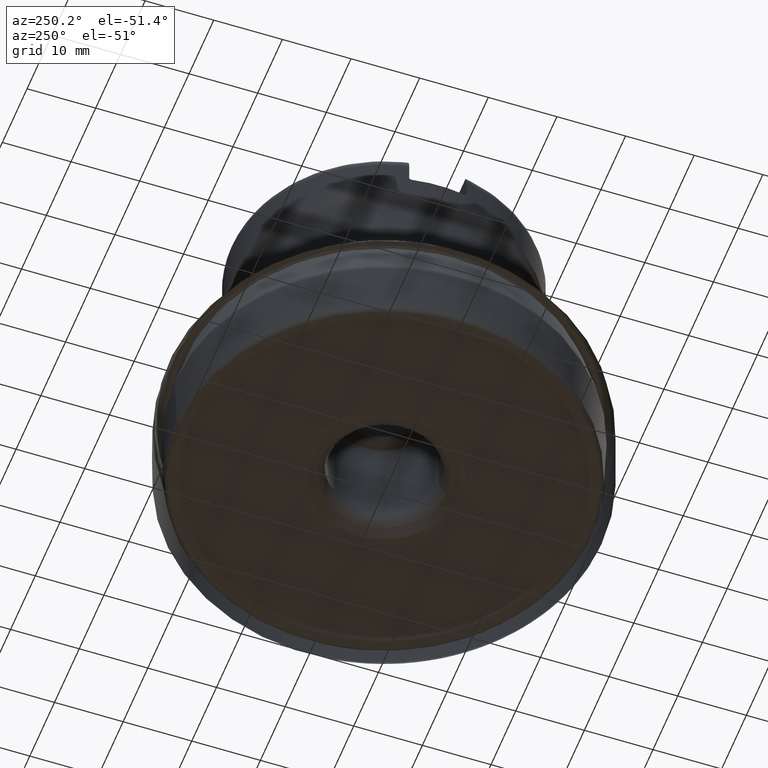
[diagram: clean part render]
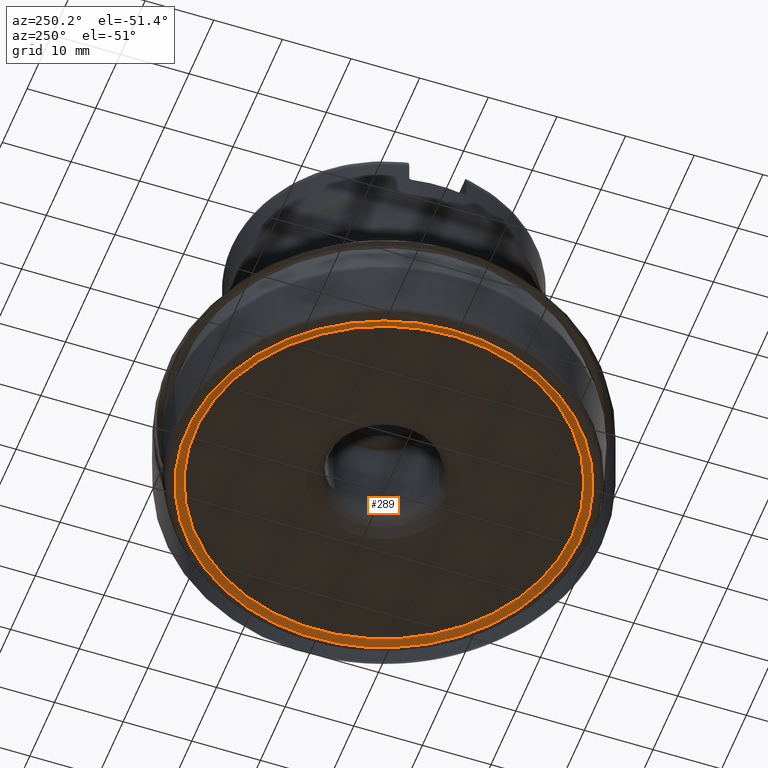
[diagram: same view with one face highlighted and labeled with its STEP entity id]
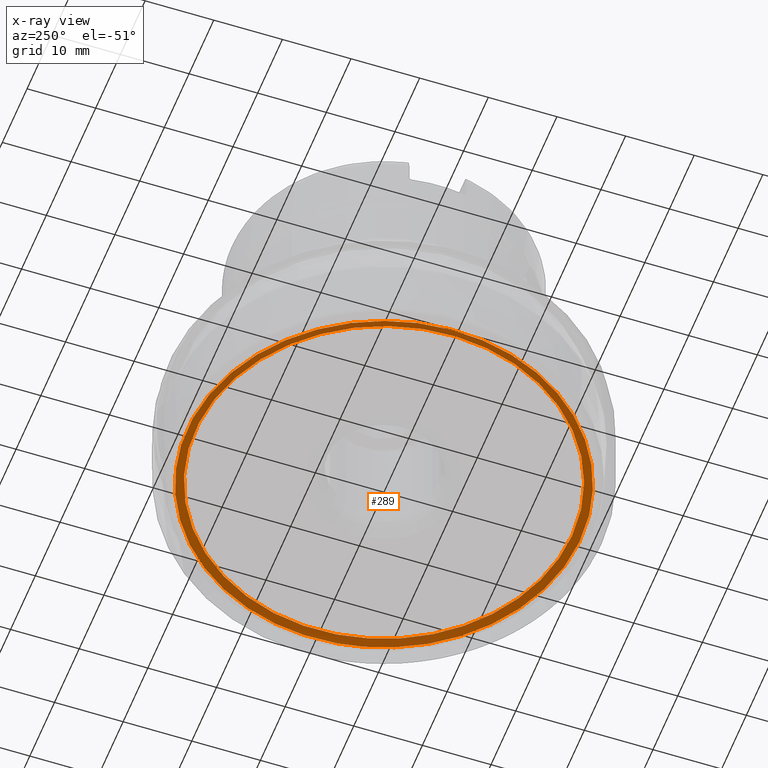
[diagram: x-ray of the same camera — body ghosted, the highlighted face saturated]
A machine part, auxiliary view. The second image highlights one B-rep face of the part: STEP entity #289.
The next image is the same camera in x-ray: the body ghosted, the highlighted face saturated — about 0% of this face is hidden behind the body in this view.
In plain terms, the highlighted face is a SurfaceOfRevolution surface.
Its self-contained STEP definition (entity closure, byte-faithful):
#122=SURFACE_OF_REVOLUTION('',#1150,#143);
#143=AXIS1_PLACEMENT('',#2445,#1529);
#154=(
BOUNDED_CURVE()
B_SPLINE_CURVE(3,(#2424,#2425,#2426,#2427,#2428,#2429,#2430),
 .UNSPECIFIED.,.T.,.F.)
B_SPLINE_CURVE_WITH_KNOTS((1,3,3,3,1),(-0.5,0.,0.5,1.,1.5),
 .UNSPECIFIED.)
CURVE()
GEOMETRIC_REPRESENTATION_ITEM()
RATIONAL_B_SPLINE_CURVE((1.,0.333333333333333,0.333333333333333,1.,0.333333333333333,
0.333333333333333,1.))
REPRESENTATION_ITEM('')
);
#289=ADVANCED_FACE('',(#454,#455),#122,.F.);
#454=FACE_BOUND('',#578,.T.);
#455=FACE_BOUND('',#579,.T.);
#578=EDGE_LOOP('',(#810));
#579=EDGE_LOOP('',(#811));
#810=ORIENTED_EDGE('',*,*,#1027,.T.);
#811=ORIENTED_EDGE('',*,*,#1028,.F.);
#911=VERTEX_POINT('',#2431);
#912=VERTEX_POINT('',#2439);
#1027=EDGE_CURVE('',#911,#911,#154,.T.);
#1028=EDGE_CURVE('',#912,#912,#1087,.T.);
#1087=CIRCLE('',#1263,27.4345930923973);
#1150=B_SPLINE_CURVE_WITH_KNOTS('',3,(#2440,#2441,#2442,#2443,#2444),
 .UNSPECIFIED.,.F.,.F.,(4,1,4),(0.,0.5,1.),.UNSPECIFIED.);
#1263=AXIS2_PLACEMENT_3D('',#2438,#1527,#1528);
#1527=DIRECTION('',(0.,1.17145536458252E-15,1.));
#1528=DIRECTION('',(0.,-1.,1.16977803160727E-15));
#1529=DIRECTION('',(0.,1.17145536458252E-15,1.));
#2424=CARTESIAN_POINT('',(28.4523291816837,-3.3827147311929,0.22177081315036));
#2425=CARTESIAN_POINT('',(35.2177586440695,53.5219436321745,0.221770813150293));
#2426=CARTESIAN_POINT('',(-21.6868997192979,60.2873730945603,0.221770813150285));
#2427=CARTESIAN_POINT('',(-28.4523291816837,3.3827147311929,0.221770813150352));
#2428=CARTESIAN_POINT('',(-35.2177586440695,-53.5219436321745,0.221770813150418));
#2429=CARTESIAN_POINT('',(21.6868997192979,-60.2873730945603,0.221770813150426));
#2430=CARTESIAN_POINT('',(28.4523291816837,-3.3827147311929,0.22177081315036));
#2431=CARTESIAN_POINT('',(28.4523025187984,-3.38271156122625,0.221730200999459));
#2438=CARTESIAN_POINT('',(0.,7.18469177022371E-16,0.613313318410911));
#2439=CARTESIAN_POINT('',(0.,-27.4345930923973,0.613313318410943));
#2440=CARTESIAN_POINT('',(27.2823940807873,-2.88693955670708,0.613310450610386));
#2441=CARTESIAN_POINT('',(27.4872861498975,-2.9636698789986,0.607591534650685));
#2442=CARTESIAN_POINT('',(27.905405588641,-3.13471430616336,0.531869995420428));
#2443=CARTESIAN_POINT('',(28.2838804271879,-3.30549471067888,0.338423135650543));
#2444=CARTESIAN_POINT('',(28.4523964026261,-3.38271944881816,0.221726301321024));
#2445=CARTESIAN_POINT('',(0.,0.,0.));